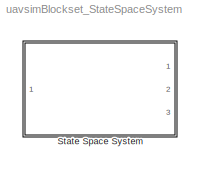
MODEL uavsimBlockset_StateSpaceSystem
KIND library
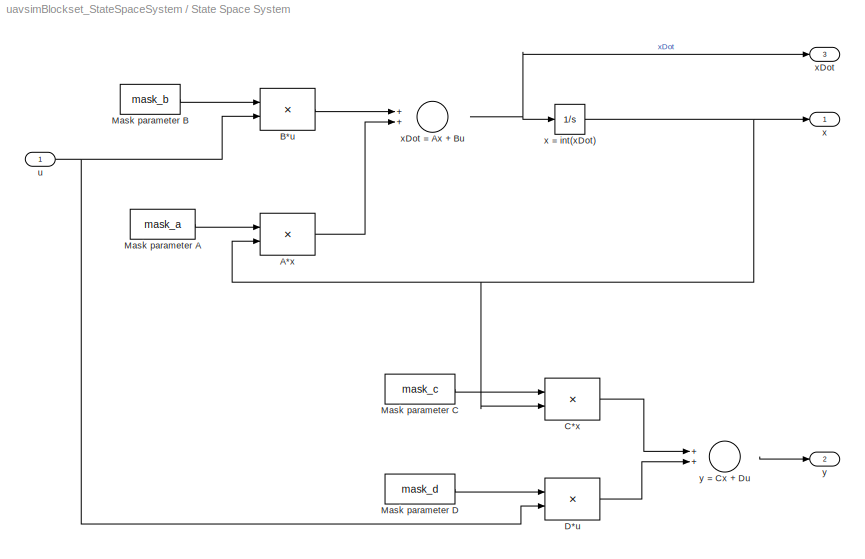
BLOCK [SubSystem] State Space System
  FunctionWithSeparateData = off
  MaskHideContents = off
  MinAlgLoopOccurrences = off
  Opaque = off
  Ports = [1, 3]
  PropExecContextOutsideSubsystem = off
  RTWSystemCode = Auto
  RequestExecContextInheritance = off
  SID = 1839
BLOCK [Product] State Space System/A*x
  InputSameDT = off
  Multiplication = Matrix(*)
  OutDataTypeStr = Inherit: Inherit via internal rule
  Ports = [2, 1]
  RndMeth = Floor
  SID = 1851
  SaturateOnIntegerOverflow = off
BLOCK [Product] State Space System/B*u
  InputSameDT = off
  Multiplication = Matrix(*)
  OutDataTypeStr = Inherit: Inherit via internal rule
  Ports = [2, 1]
  RndMeth = Floor
  SID = 1844
  SaturateOnIntegerOverflow = off
BLOCK [Product] State Space System/C*x
  InputSameDT = off
  Multiplication = Matrix(*)
  OutDataTypeStr = Inherit: Inherit via internal rule
  Ports = [2, 1]
  RndMeth = Floor
  SID = 1853
  SaturateOnIntegerOverflow = off
BLOCK [Product] State Space System/D*u
  InputSameDT = off
  Multiplication = Matrix(*)
  OutDataTypeStr = Inherit: Inherit via internal rule
  Ports = [2, 1]
  RndMeth = Floor
  SID = 1855
  SaturateOnIntegerOverflow = off
BLOCK [Constant] State Space System/Mask parameter A
  SID = 1846
  Value = mask_a
BLOCK [Constant] State Space System/Mask parameter B
  SID = 1847
  Value = mask_b
BLOCK [Constant] State Space System/Mask parameter C
  SID = 1848
  Value = mask_c
BLOCK [Constant] State Space System/Mask parameter D
  SID = 1849
  Value = mask_d
BLOCK [Inport] State Space System/u
  IconDisplay = Port number
  SID = 1840
BLOCK [Outport] State Space System/x
  IconDisplay = Port number
  SID = 1841
BLOCK [Integrator] State Space System/x = int(xDot)
  InitialCondition = mask_x0
  Ports = [1, 1]
  SID = 1850
BLOCK [Outport] State Space System/xDot
  IconDisplay = Port number
  Port = 3
  SID = 1843
BLOCK [Sum] State Space System/xDot = Ax + Bu
  InputSameDT = off
  OutDataTypeStr = Inherit: Inherit via internal rule
  Ports = [2, 1]
  SID = 1845
  SaturateOnIntegerOverflow = off
BLOCK [Outport] State Space System/y
  IconDisplay = Port number
  Port = 2
  SID = 1842
BLOCK [Sum] State Space System/y = Cx + Du
  InputSameDT = off
  OutDataTypeStr = Inherit: Inherit via internal rule
  Ports = [2, 1]
  SID = 1854
  SaturateOnIntegerOverflow = off
LINE State Space System/A*x:1 -> State Space System/xDot = Ax + Bu:2
LINE State Space System/B*u:1 -> State Space System/xDot = Ax + Bu:1
LINE State Space System/C*x:1 -> State Space System/y = Cx + Du:1
LINE State Space System/D*u:1 -> State Space System/y = Cx + Du:2
LINE State Space System/Mask parameter A:1 -> State Space System/A*x:1
LINE State Space System/Mask parameter B:1 -> State Space System/B*u:1
LINE State Space System/Mask parameter C:1 -> State Space System/C*x:1
LINE State Space System/Mask parameter D:1 -> State Space System/D*u:1
NET State Space System/u:1 -> State Space System/B*u:2, State Space System/D*u:2
NET State Space System/x = int(xDot):1 -> State Space System/A*x:2, State Space System/C*x:2, State Space System/x:1
NET State Space System/xDot = Ax + Bu:1 -> State Space System/x = int(xDot):1, State Space System/xDot:1
LINE State Space System/y = Cx + Du:1 -> State Space System/y:1
note: NET lines group one-source signal fan-out (src -> all destinations, sorted); 1:1 wires keep LINE
